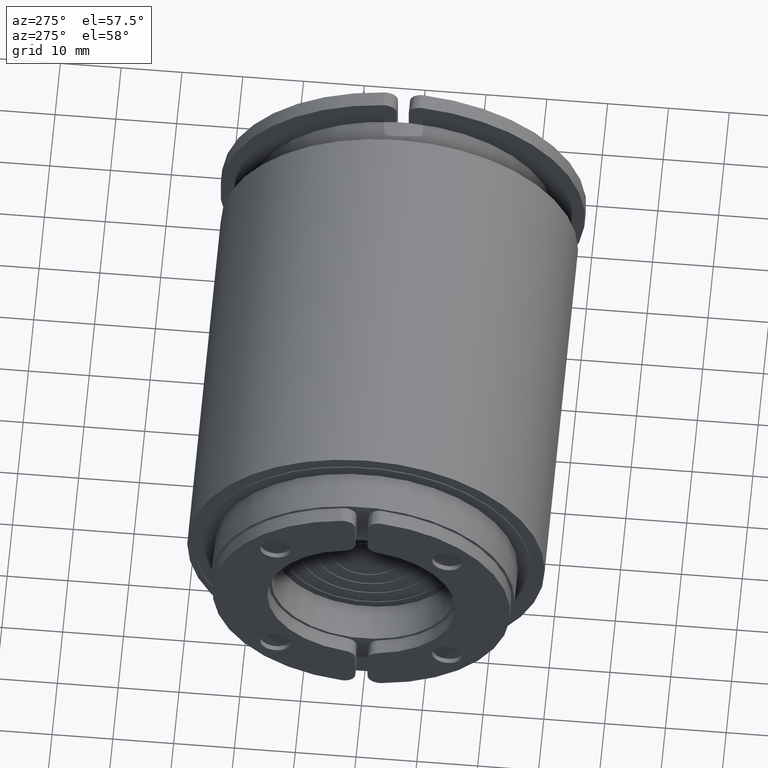
[diagram: clean part render]
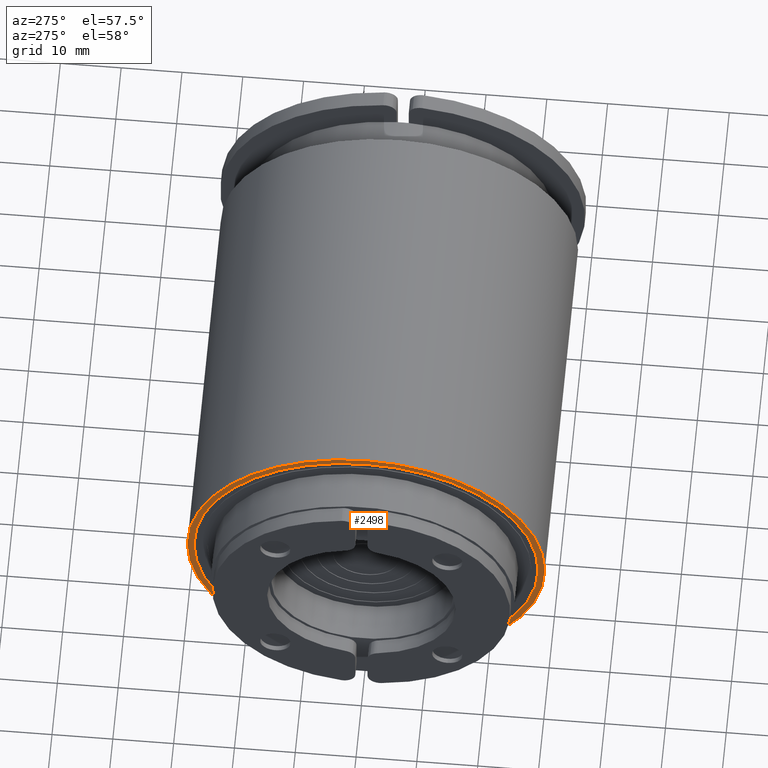
[diagram: same view with one face highlighted and labeled with its STEP entity id]
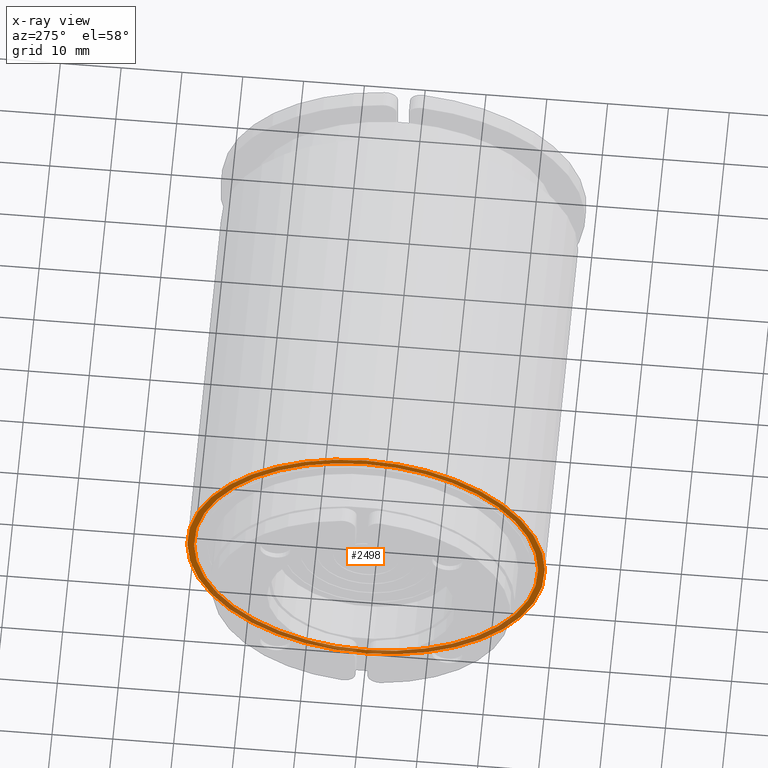
[diagram: x-ray of the same camera — body ghosted, the highlighted face saturated]
A machine part, auxiliary view. The second image highlights one B-rep face of the part: STEP entity #2498.
The next image is the same camera in x-ray: the body ghosted, the highlighted face saturated — about 31% of this face is hidden behind the body in this view.
In plain terms, the highlighted planar face has unit normal (-1, 0, 0).
Its self-contained STEP definition (entity closure, byte-faithful):
#2270=CARTESIAN_POINT('',(-31.250000000000000,-29.399999999999999,3.600343E-015));
#2271=VERTEX_POINT('',#2270);
#2280=CARTESIAN_POINT('',(-31.250000000000000,29.399999999999999,3.600343E-015));
#2281=VERTEX_POINT('',#2280);
#2282=CARTESIAN_POINT('',(-31.250000000000000,0.0,0.0));
#2283=DIRECTION('',(1.0,0.0,0.0));
#2284=DIRECTION('',(0.0,-1.0,0.0));
#2285=AXIS2_PLACEMENT_3D('',#2282,#2283,#2284);
#2286=CIRCLE('',#2285,29.399999999999999);
#2287=EDGE_CURVE('',#2271,#2281,#2286,.T.);
#2314=CARTESIAN_POINT('',(-31.250000000000000,-28.299999999999997,3.465636E-015));
#2315=VERTEX_POINT('',#2314);
#2331=CARTESIAN_POINT('',(-31.250000000000000,28.299999999999997,3.465636E-015));
#2332=VERTEX_POINT('',#2331);
#2339=CARTESIAN_POINT('',(-31.250000000000000,0.0,0.0));
#2340=DIRECTION('',(1.0,0.0,0.0));
#2341=DIRECTION('',(0.0,-1.0,0.0));
#2342=AXIS2_PLACEMENT_3D('',#2339,#2340,#2341);
#2343=CIRCLE('',#2342,28.299999999999997);
#2344=EDGE_CURVE('',#2315,#2332,#2343,.T.);
#2467=CARTESIAN_POINT('',(-31.250000000000000,0.0,0.0));
#2468=DIRECTION('',(1.0,0.0,0.0));
#2469=DIRECTION('',(0.0,-1.0,0.0));
#2470=AXIS2_PLACEMENT_3D('',#2467,#2468,#2469);
#2471=CIRCLE('',#2470,28.299999999999997);
#2472=EDGE_CURVE('',#2332,#2315,#2471,.T.);
#2479=CARTESIAN_POINT('',(-31.250000000000000,0.0,0.0));
#2480=DIRECTION('',(-1.0,0.0,0.0));
#2481=DIRECTION('',(0.0,0.0,1.0));
#2482=AXIS2_PLACEMENT_3D('',#2479,#2480,#2481);
#2483=PLANE('',#2482);
#2484=CARTESIAN_POINT('',(-31.250000000000000,0.0,0.0));
#2485=DIRECTION('',(1.0,0.0,0.0));
#2486=DIRECTION('',(0.0,-1.0,0.0));
#2487=AXIS2_PLACEMENT_3D('',#2484,#2485,#2486);
#2488=CIRCLE('',#2487,29.399999999999999);
#2489=EDGE_CURVE('',#2281,#2271,#2488,.T.);
#2490=ORIENTED_EDGE('',*,*,#2489,.F.);
#2491=ORIENTED_EDGE('',*,*,#2287,.F.);
#2492=EDGE_LOOP('',(#2490,#2491));
#2493=FACE_OUTER_BOUND('',#2492,.T.);
#2494=ORIENTED_EDGE('',*,*,#2472,.T.);
#2495=ORIENTED_EDGE('',*,*,#2344,.T.);
#2496=EDGE_LOOP('',(#2494,#2495));
#2497=FACE_BOUND('',#2496,.T.);
#2498=ADVANCED_FACE('',(#2493,#2497),#2483,.T.);